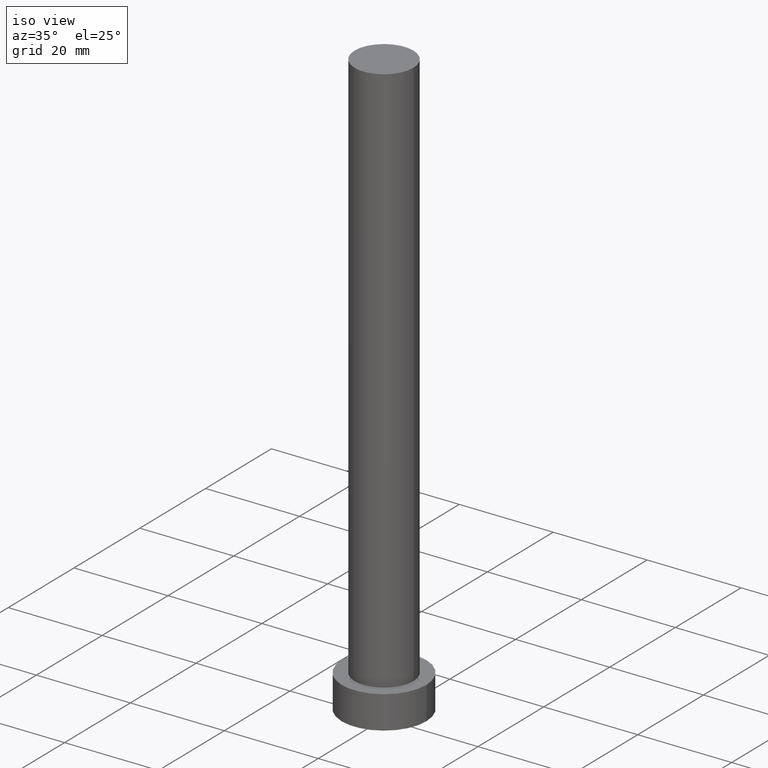
[diagram: clean part render]
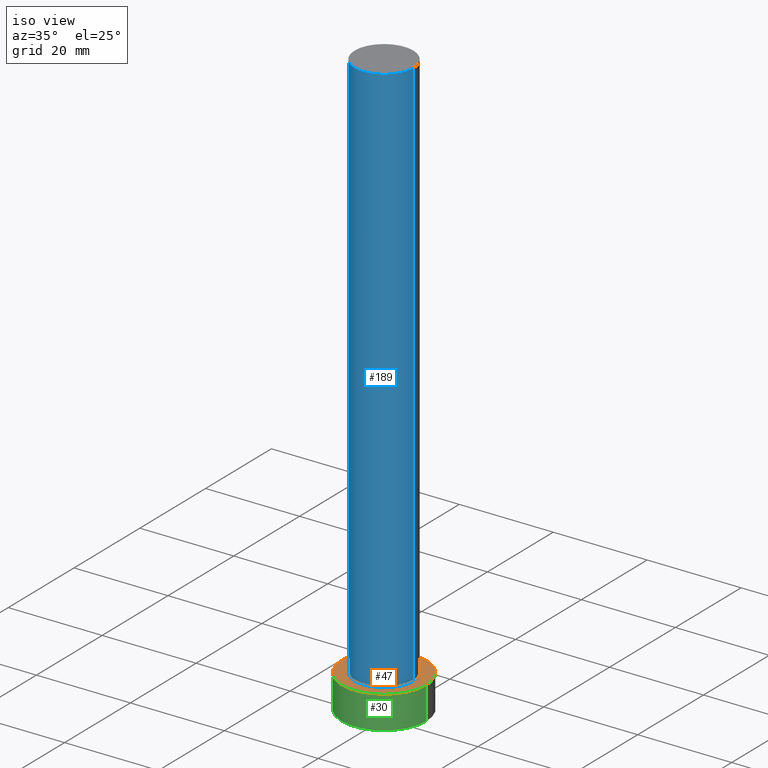
[diagram: same view with three faces highlighted in distinct colors, each labeled with its STEP entity id]
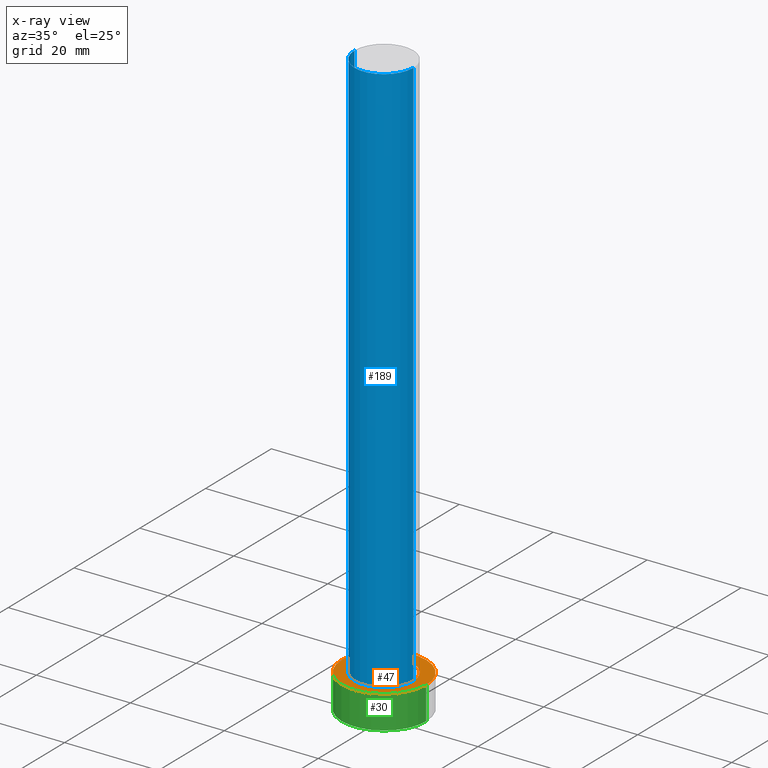
[diagram: x-ray of the same camera — body ghosted, the three highlighted faces saturated]
A machine part, iso view with three faces highlighted in distinct colors.
The next image is the same camera in x-ray (body ghosted, the three faces saturated) — at least one of them is partly hidden behind the body in this view.
Their STEP definitions:

[orange] entity #47 — the highlighted planar face has unit normal (0, 0, 1).
#26 = EDGE_CURVE ( 'NONE', #91, #145, #249, .T. ) ;
#37 = VERTEX_POINT ( 'NONE', #215 ) ;
#42 = CIRCLE ( 'NONE', #172, 6.250000000000000000 ) ;
#47 = ADVANCED_FACE ( 'NONE', ( #194, #243 ), #239, .T. ) ;
#50 = DIRECTION ( 'NONE',  ( 0.000000000000000000, 0.000000000000000000, 1.000000000000000000 ) ) ;
#51 = ORIENTED_EDGE ( 'NONE', *, *, #121, .F. ) ;
#55 = DIRECTION ( 'NONE',  ( 1.000000000000000000, 0.000000000000000000, 0.000000000000000000 ) ) ;
#58 = ORIENTED_EDGE ( 'NONE', *, *, #228, .T. ) ;
#63 = CARTESIAN_POINT ( 'NONE',  ( 0.000000000000000000, 0.000000000000000000, 7.000000000000000000 ) ) ;
#66 = DIRECTION ( 'NONE',  ( 1.000000000000000000, 0.000000000000000000, 0.000000000000000000 ) ) ;
#69 = CARTESIAN_POINT ( 'NONE',  ( 9.000000000000000000, 1.102182119232617714E-15, 7.000000000000000000 ) ) ;
#77 = EDGE_LOOP ( 'NONE', ( #58, #170 ) ) ;
#91 = VERTEX_POINT ( 'NONE', #69 ) ;
#96 = CARTESIAN_POINT ( 'NONE',  ( -6.250000000000000000, 0.000000000000000000, 7.000000000000000000 ) ) ;
#101 = CIRCLE ( 'NONE', #134, 9.000000000000000000 ) ;
#109 = DIRECTION ( 'NONE',  ( 0.000000000000000000, 0.000000000000000000, 1.000000000000000000 ) ) ;
#114 = CARTESIAN_POINT ( 'NONE',  ( 0.000000000000000000, 0.000000000000000000, 7.000000000000000000 ) ) ;
#120 = CARTESIAN_POINT ( 'NONE',  ( 0.000000000000000000, 0.000000000000000000, 7.000000000000000000 ) ) ;
#121 = EDGE_CURVE ( 'NONE', #227, #37, #240, .T. ) ;
#131 = DIRECTION ( 'NONE',  ( 0.000000000000000000, 0.000000000000000000, 1.000000000000000000 ) ) ;
#133 = AXIS2_PLACEMENT_3D ( 'NONE', #114, #169, #66 ) ;
#134 = AXIS2_PLACEMENT_3D ( 'NONE', #167, #109, #55 ) ;
#144 = CARTESIAN_POINT ( 'NONE',  ( 0.000000000000000000, 0.000000000000000000, 7.000000000000000000 ) ) ;
#145 = VERTEX_POINT ( 'NONE', #201 ) ;
#148 = AXIS2_PLACEMENT_3D ( 'NONE', #120, #183, #202 ) ;
#150 = EDGE_LOOP ( 'NONE', ( #51, #162 ) ) ;
#162 = ORIENTED_EDGE ( 'NONE', *, *, #168, .F. ) ;
#164 = AXIS2_PLACEMENT_3D ( 'NONE', #63, #131, #213 ) ;
#167 = CARTESIAN_POINT ( 'NONE',  ( 0.000000000000000000, 0.000000000000000000, 7.000000000000000000 ) ) ;
#168 = EDGE_CURVE ( 'NONE', #37, #227, #42, .T. ) ;
#169 = DIRECTION ( 'NONE',  ( 0.000000000000000000, 0.000000000000000000, 1.000000000000000000 ) ) ;
#170 = ORIENTED_EDGE ( 'NONE', *, *, #26, .T. ) ;
#172 = AXIS2_PLACEMENT_3D ( 'NONE', #144, #50, #204 ) ;
#183 = DIRECTION ( 'NONE',  ( 0.000000000000000000, 0.000000000000000000, 1.000000000000000000 ) ) ;
#194 = FACE_BOUND ( 'NONE', #150, .T. ) ;
#201 = CARTESIAN_POINT ( 'NONE',  ( -9.000000000000000000, 0.000000000000000000, 7.000000000000000000 ) ) ;
#202 = DIRECTION ( 'NONE',  ( 1.000000000000000000, 0.000000000000000000, 0.000000000000000000 ) ) ;
#204 = DIRECTION ( 'NONE',  ( 1.000000000000000000, 0.000000000000000000, 0.000000000000000000 ) ) ;
#213 = DIRECTION ( 'NONE',  ( 1.000000000000000000, 0.000000000000000000, -0.000000000000000000 ) ) ;
#215 = CARTESIAN_POINT ( 'NONE',  ( 6.250000000000000000, 7.654042494670957606E-16, 7.000000000000000000 ) ) ;
#227 = VERTEX_POINT ( 'NONE', #96 ) ;
#228 = EDGE_CURVE ( 'NONE', #145, #91, #101, .T. ) ;
#239 = PLANE ( 'NONE',  #164 ) ;
#240 = CIRCLE ( 'NONE', #148, 6.250000000000000000 ) ;
#243 = FACE_OUTER_BOUND ( 'NONE', #77, .T. ) ;
#249 = CIRCLE ( 'NONE', #133, 9.000000000000000000 ) ;

[blue] entity #189 — the highlighted cylindrical surface (edge-blend (fillet) strip) has radius 6.25 mm, axis along (-0, -0, -1).
#2 = ORIENTED_EDGE ( 'NONE', *, *, #75, .F. ) ;
#17 = CARTESIAN_POINT ( 'NONE',  ( -6.250000000000000000, 0.000000000000000000, 125.0000000000000000 ) ) ;
#33 = CARTESIAN_POINT ( 'NONE',  ( -6.250000000000000000, 0.000000000000000000, 125.0000000000000000 ) ) ;
#37 = VERTEX_POINT ( 'NONE', #215 ) ;
#52 = CYLINDRICAL_SURFACE ( 'NONE', #207, 6.250000000000000000 ) ;
#53 = VERTEX_POINT ( 'NONE', #17 ) ;
#71 = DIRECTION ( 'NONE',  ( -0.000000000000000000, -0.000000000000000000, -1.000000000000000000 ) ) ;
#74 = ORIENTED_EDGE ( 'NONE', *, *, #95, .T. ) ;
#75 = EDGE_CURVE ( 'NONE', #212, #37, #205, .T. ) ;
#95 = EDGE_CURVE ( 'NONE', #53, #227, #224, .T. ) ;
#96 = CARTESIAN_POINT ( 'NONE',  ( -6.250000000000000000, 0.000000000000000000, 7.000000000000000000 ) ) ;
#105 = CARTESIAN_POINT ( 'NONE',  ( 0.000000000000000000, 0.000000000000000000, 125.0000000000000000 ) ) ;
#107 = VECTOR ( 'NONE', #225, 1000.000000000000000 ) ;
#108 = ORIENTED_EDGE ( 'NONE', *, *, #121, .T. ) ;
#120 = CARTESIAN_POINT ( 'NONE',  ( 0.000000000000000000, 0.000000000000000000, 7.000000000000000000 ) ) ;
#121 = EDGE_CURVE ( 'NONE', #227, #37, #240, .T. ) ;
#141 = EDGE_CURVE ( 'NONE', #53, #212, #252, .T. ) ;
#146 = DIRECTION ( 'NONE',  ( -0.000000000000000000, -0.000000000000000000, -1.000000000000000000 ) ) ;
#148 = AXIS2_PLACEMENT_3D ( 'NONE', #120, #183, #202 ) ;
#161 = CARTESIAN_POINT ( 'NONE',  ( 6.250000000000000000, 7.654042494670957606E-16, 125.0000000000000000 ) ) ;
#163 = CARTESIAN_POINT ( 'NONE',  ( 0.000000000000000000, 0.000000000000000000, 125.0000000000000000 ) ) ;
#165 = DIRECTION ( 'NONE',  ( 1.000000000000000000, 0.000000000000000000, 0.000000000000000000 ) ) ;
#176 = DIRECTION ( 'NONE',  ( 0.000000000000000000, 0.000000000000000000, 1.000000000000000000 ) ) ;
#183 = DIRECTION ( 'NONE',  ( 0.000000000000000000, 0.000000000000000000, 1.000000000000000000 ) ) ;
#189 = ADVANCED_FACE ( 'NONE', ( #230 ), #52, .T. ) ;
#191 = ORIENTED_EDGE ( 'NONE', *, *, #141, .F. ) ;
#202 = DIRECTION ( 'NONE',  ( 1.000000000000000000, 0.000000000000000000, 0.000000000000000000 ) ) ;
#205 = LINE ( 'NONE', #161, #107 ) ;
#207 = AXIS2_PLACEMENT_3D ( 'NONE', #105, #146, #237 ) ;
#212 = VERTEX_POINT ( 'NONE', #233 ) ;
#215 = CARTESIAN_POINT ( 'NONE',  ( 6.250000000000000000, 7.654042494670957606E-16, 7.000000000000000000 ) ) ;
#224 = LINE ( 'NONE', #33, #229 ) ;
#225 = DIRECTION ( 'NONE',  ( -0.000000000000000000, -0.000000000000000000, -1.000000000000000000 ) ) ;
#227 = VERTEX_POINT ( 'NONE', #96 ) ;
#229 = VECTOR ( 'NONE', #71, 1000.000000000000000 ) ;
#230 = FACE_OUTER_BOUND ( 'NONE', #234, .T. ) ;
#232 = AXIS2_PLACEMENT_3D ( 'NONE', #163, #176, #165 ) ;
#233 = CARTESIAN_POINT ( 'NONE',  ( 6.250000000000000000, 7.654042494670957606E-16, 125.0000000000000000 ) ) ;
#234 = EDGE_LOOP ( 'NONE', ( #2, #191, #74, #108 ) ) ;
#237 = DIRECTION ( 'NONE',  ( -1.000000000000000000, 0.000000000000000000, 0.000000000000000000 ) ) ;
#240 = CIRCLE ( 'NONE', #148, 6.250000000000000000 ) ;
#252 = CIRCLE ( 'NONE', #232, 6.250000000000000000 ) ;

[green] entity #30 — the highlighted cylindrical surface (partial cylindrical patch) has radius 9 mm, axis along (-0, -0, -1).
#5 = FACE_OUTER_BOUND ( 'NONE', #7, .T. ) ;
#7 = EDGE_LOOP ( 'NONE', ( #255, #171, #236, #56 ) ) ;
#12 = CIRCLE ( 'NONE', #173, 9.000000000000000000 ) ;
#29 = CARTESIAN_POINT ( 'NONE',  ( -9.000000000000000000, 0.000000000000000000, 7.000000000000000000 ) ) ;
#30 = ADVANCED_FACE ( 'NONE', ( #5 ), #147, .T. ) ;
#32 = VERTEX_POINT ( 'NONE', #149 ) ;
#39 = AXIS2_PLACEMENT_3D ( 'NONE', #65, #80, #116 ) ;
#46 = VECTOR ( 'NONE', #94, 1000.000000000000000 ) ;
#55 = DIRECTION ( 'NONE',  ( 1.000000000000000000, 0.000000000000000000, 0.000000000000000000 ) ) ;
#56 = ORIENTED_EDGE ( 'NONE', *, *, #103, .T. ) ;
#65 = CARTESIAN_POINT ( 'NONE',  ( 0.000000000000000000, 0.000000000000000000, 7.000000000000000000 ) ) ;
#69 = CARTESIAN_POINT ( 'NONE',  ( 9.000000000000000000, 1.102182119232617714E-15, 7.000000000000000000 ) ) ;
#78 = CARTESIAN_POINT ( 'NONE',  ( 9.000000000000000000, 1.102182119232617714E-15, 7.000000000000000000 ) ) ;
#80 = DIRECTION ( 'NONE',  ( -0.000000000000000000, -0.000000000000000000, -1.000000000000000000 ) ) ;
#89 = CARTESIAN_POINT ( 'NONE',  ( -9.000000000000000000, 0.000000000000000000, 0.000000000000000000 ) ) ;
#91 = VERTEX_POINT ( 'NONE', #69 ) ;
#92 = LINE ( 'NONE', #29, #46 ) ;
#94 = DIRECTION ( 'NONE',  ( -0.000000000000000000, -0.000000000000000000, -1.000000000000000000 ) ) ;
#101 = CIRCLE ( 'NONE', #134, 9.000000000000000000 ) ;
#103 = EDGE_CURVE ( 'NONE', #110, #32, #12, .T. ) ;
#106 = DIRECTION ( 'NONE',  ( 0.000000000000000000, 0.000000000000000000, 1.000000000000000000 ) ) ;
#109 = DIRECTION ( 'NONE',  ( 0.000000000000000000, 0.000000000000000000, 1.000000000000000000 ) ) ;
#110 = VERTEX_POINT ( 'NONE', #89 ) ;
#116 = DIRECTION ( 'NONE',  ( -1.000000000000000000, 0.000000000000000000, 0.000000000000000000 ) ) ;
#123 = EDGE_CURVE ( 'NONE', #145, #110, #92, .T. ) ;
#124 = CARTESIAN_POINT ( 'NONE',  ( 0.000000000000000000, 0.000000000000000000, 0.000000000000000000 ) ) ;
#134 = AXIS2_PLACEMENT_3D ( 'NONE', #167, #109, #55 ) ;
#143 = DIRECTION ( 'NONE',  ( 1.000000000000000000, 0.000000000000000000, 0.000000000000000000 ) ) ;
#145 = VERTEX_POINT ( 'NONE', #201 ) ;
#147 = CYLINDRICAL_SURFACE ( 'NONE', #39, 9.000000000000000000 ) ;
#149 = CARTESIAN_POINT ( 'NONE',  ( 9.000000000000000000, 1.102182119232617714E-15, 0.000000000000000000 ) ) ;
#167 = CARTESIAN_POINT ( 'NONE',  ( 0.000000000000000000, 0.000000000000000000, 7.000000000000000000 ) ) ;
#171 = ORIENTED_EDGE ( 'NONE', *, *, #228, .F. ) ;
#173 = AXIS2_PLACEMENT_3D ( 'NONE', #124, #106, #143 ) ;
#174 = VECTOR ( 'NONE', #185, 1000.000000000000000 ) ;
#185 = DIRECTION ( 'NONE',  ( -0.000000000000000000, -0.000000000000000000, -1.000000000000000000 ) ) ;
#192 = LINE ( 'NONE', #78, #174 ) ;
#201 = CARTESIAN_POINT ( 'NONE',  ( -9.000000000000000000, 0.000000000000000000, 7.000000000000000000 ) ) ;
#217 = EDGE_CURVE ( 'NONE', #91, #32, #192, .T. ) ;
#228 = EDGE_CURVE ( 'NONE', #145, #91, #101, .T. ) ;
#236 = ORIENTED_EDGE ( 'NONE', *, *, #123, .T. ) ;
#255 = ORIENTED_EDGE ( 'NONE', *, *, #217, .F. ) ;